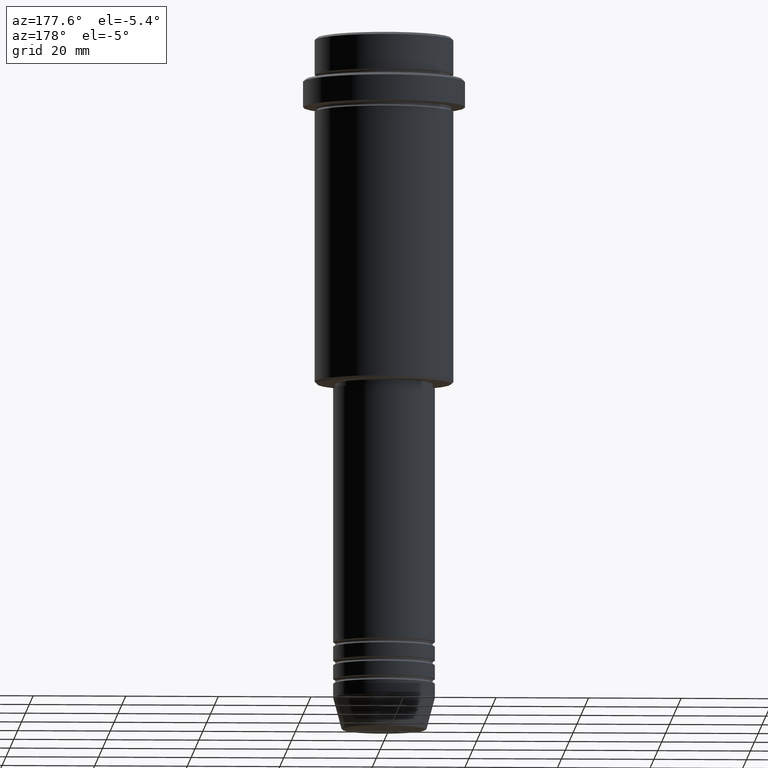
[diagram: clean part render]
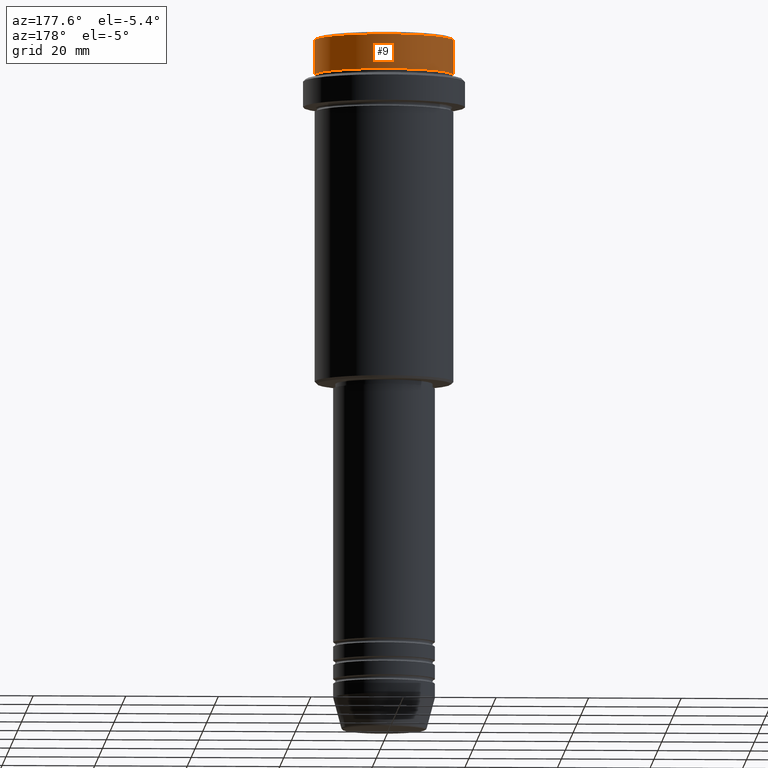
[diagram: same view with one face highlighted and labeled with its STEP entity id]
A machine part, auxiliary view. The second image highlights one B-rep face of the part: STEP entity #9.
In plain terms, the highlighted cylindrical surface (partial cylindrical patch) has radius 15 mm, axis along (-0, -0, 1).
Its self-contained STEP definition (entity closure, byte-faithful):
#9 = ADVANCED_FACE ( 'NONE', ( #1040 ), #63, .T. ) ;
#63 = CYLINDRICAL_SURFACE ( 'NONE', #453, 15.00000000000000000 ) ;
#84 = EDGE_CURVE ( 'NONE', #1272, #1365, #1284, .T. ) ;
#176 = DIRECTION ( 'NONE',  ( -0.000000000000000000, -0.000000000000000000, 1.000000000000000000 ) ) ;
#282 = DIRECTION ( 'NONE',  ( -0.000000000000000000, -0.000000000000000000, 1.000000000000000000 ) ) ;
#293 = DIRECTION ( 'NONE',  ( -0.000000000000000000, -0.000000000000000000, 1.000000000000000000 ) ) ;
#355 = EDGE_CURVE ( 'NONE', #646, #1365, #1393, .T. ) ;
#374 = ORIENTED_EDGE ( 'NONE', *, *, #401, .T. ) ;
#401 = EDGE_CURVE ( 'NONE', #746, #1272, #939, .T. ) ;
#453 = AXIS2_PLACEMENT_3D ( 'NONE', #930, #176, #604 ) ;
#457 = CIRCLE ( 'NONE', #1128, 15.00000000000000000 ) ;
#469 = CARTESIAN_POINT ( 'NONE',  ( 15.00000000000000000, 0.000000000000000000, -0.4999999999999970024 ) ) ;
#489 = ORIENTED_EDGE ( 'NONE', *, *, #84, .T. ) ;
#518 = DIRECTION ( 'NONE',  ( 1.000000000000000000, 0.000000000000000000, 0.000000000000000000 ) ) ;
#604 = DIRECTION ( 'NONE',  ( 1.000000000000000000, 0.000000000000000000, 0.000000000000000000 ) ) ;
#623 = CARTESIAN_POINT ( 'NONE',  ( 0.000000000000000000, 0.000000000000000000, -7.999999999999998224 ) ) ;
#646 = VERTEX_POINT ( 'NONE', #1113 ) ;
#651 = ORIENTED_EDGE ( 'NONE', *, *, #1301, .T. ) ;
#664 = CARTESIAN_POINT ( 'NONE',  ( -15.00000000000000000, 1.836970198721029589E-15, -7.999999999999998224 ) ) ;
#734 = ORIENTED_EDGE ( 'NONE', *, *, #355, .F. ) ;
#746 = VERTEX_POINT ( 'NONE', #664 ) ;
#925 = CARTESIAN_POINT ( 'NONE',  ( 15.00000000000000000, 0.000000000000000000, 0.000000000000000000 ) ) ;
#930 = CARTESIAN_POINT ( 'NONE',  ( 0.000000000000000000, 0.000000000000000000, 0.000000000000000000 ) ) ;
#939 = LINE ( 'NONE', #1291, #981 ) ;
#969 = CARTESIAN_POINT ( 'NONE',  ( 0.000000000000000000, 0.000000000000000000, -0.4999999999999970024 ) ) ;
#981 = VECTOR ( 'NONE', #1364, 1000.000000000000000 ) ;
#1040 = FACE_OUTER_BOUND ( 'NONE', #1278, .T. ) ;
#1046 = CARTESIAN_POINT ( 'NONE',  ( -15.00000000000000000, 1.836970198721029589E-15, -0.4999999999999970024 ) ) ;
#1050 = AXIS2_PLACEMENT_3D ( 'NONE', #969, #1320, #1218 ) ;
#1113 = CARTESIAN_POINT ( 'NONE',  ( 15.00000000000000000, 0.000000000000000000, -7.999999999999998224 ) ) ;
#1122 = VECTOR ( 'NONE', #282, 1000.000000000000000 ) ;
#1128 = AXIS2_PLACEMENT_3D ( 'NONE', #623, #293, #518 ) ;
#1218 = DIRECTION ( 'NONE',  ( 1.000000000000000000, 0.000000000000000000, 0.000000000000000000 ) ) ;
#1272 = VERTEX_POINT ( 'NONE', #1046 ) ;
#1278 = EDGE_LOOP ( 'NONE', ( #651, #374, #489, #734 ) ) ;
#1284 = CIRCLE ( 'NONE', #1050, 15.00000000000000000 ) ;
#1291 = CARTESIAN_POINT ( 'NONE',  ( -15.00000000000000000, 1.836970198721029589E-15, 0.000000000000000000 ) ) ;
#1301 = EDGE_CURVE ( 'NONE', #646, #746, #457, .T. ) ;
#1320 = DIRECTION ( 'NONE',  ( 0.000000000000000000, 0.000000000000000000, -1.000000000000000000 ) ) ;
#1364 = DIRECTION ( 'NONE',  ( -0.000000000000000000, -0.000000000000000000, 1.000000000000000000 ) ) ;
#1365 = VERTEX_POINT ( 'NONE', #469 ) ;
#1393 = LINE ( 'NONE', #925, #1122 ) ;